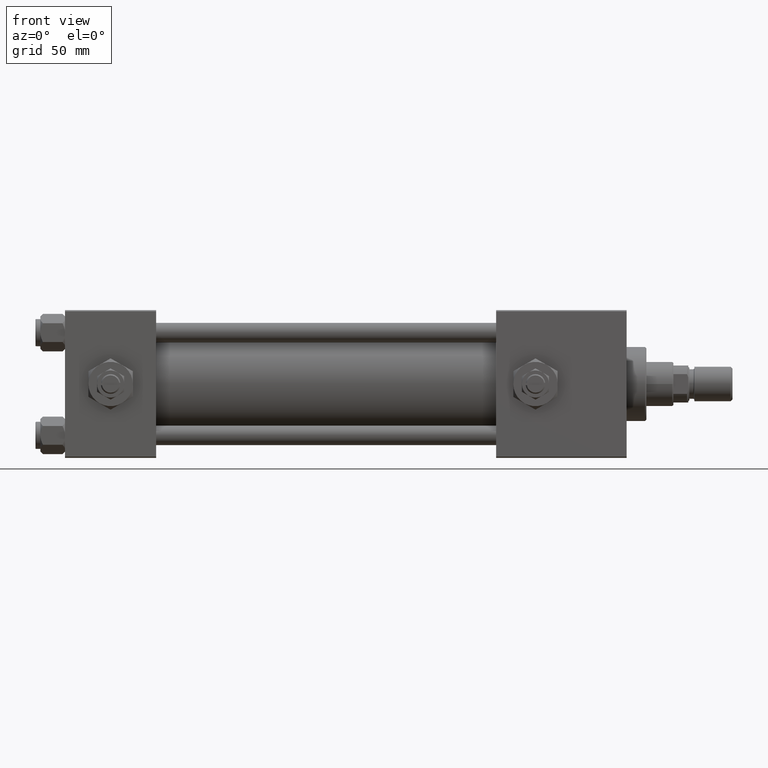
[diagram: clean part render]
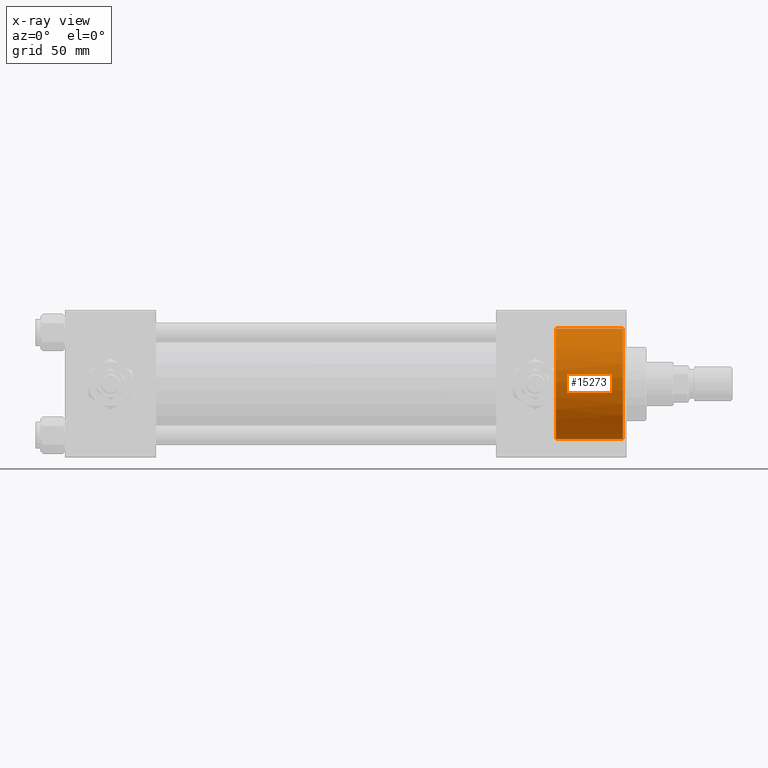
[diagram: x-ray — body ghosted, one internal face saturated and labeled with its STEP entity id]
A machine part, front view, then the same camera in x-ray: the body is ghosted and one INTERNAL B-rep face — a face not visible from any outside direction — is saturated and labeled: STEP entity #15273.
In plain terms, the highlighted cylindrical surface (partial cylindrical patch) has radius 22.5 mm, axis along (1, 0, 0).
Its self-contained STEP definition (entity closure, byte-faithful):
#1144 = VERTEX_POINT ( 'NONE', #46832 ) ;
#1400 = VERTEX_POINT ( 'NONE', #31064 ) ;
#1841 = DIRECTION ( 'NONE',  ( 1.000000000000000000, -0.000000000000000000, -0.000000000000000000 ) ) ;
#3686 = ORIENTED_EDGE ( 'NONE', *, *, #42971, .F. ) ;
#4067 = ORIENTED_EDGE ( 'NONE', *, *, #41295, .T. ) ;
#4531 = DIRECTION ( 'NONE',  ( 0.000000000000000000, 0.000000000000000000, -1.000000000000000000 ) ) ;
#8069 = CIRCLE ( 'NONE', #23447, 22.50000000000000355 ) ;
#8819 = ORIENTED_EDGE ( 'NONE', *, *, #12470, .F. ) ;
#9123 = CARTESIAN_POINT ( 'NONE',  ( 199.3000000000000114, -22.48891060056044822, -0.7063285354563751950 ) ) ;
#9383 = CARTESIAN_POINT ( 'NONE',  ( 199.3000000000000114, -22.48891060056044822, 0.7063285354563765273 ) ) ;
#9953 = CARTESIAN_POINT ( 'NONE',  ( 199.3000000000000114, 2.755455298081545172E-15, 22.50000000000000355 ) ) ;
#10966 = LINE ( 'NONE', #19240, #36518 ) ;
#12470 = EDGE_CURVE ( 'NONE', #35945, #1144, #21032, .T. ) ;
#12532 = DIRECTION ( 'NONE',  ( 0.000000000000000000, 0.000000000000000000, -1.000000000000000000 ) ) ;
#13658 = VECTOR ( 'NONE', #15666, 1000.000000000000000 ) ;
#14880 = CIRCLE ( 'NONE', #46457, 22.50000000000000355 ) ;
#15039 = ORIENTED_EDGE ( 'NONE', *, *, #43647, .T. ) ;
#15273 = ADVANCED_FACE ( 'NONE', ( #40689 ), #49517, .F. ) ;
#15666 = DIRECTION ( 'NONE',  ( 1.000000000000000000, -0.000000000000000000, -0.000000000000000000 ) ) ;
#17874 = ORIENTED_EDGE ( 'NONE', *, *, #30131, .T. ) ;
#18170 = EDGE_CURVE ( 'NONE', #1400, #36344, #10966, .T. ) ;
#18454 = AXIS2_PLACEMENT_3D ( 'NONE', #20037, #49180, #12532 ) ;
#19240 = CARTESIAN_POINT ( 'NONE',  ( 199.3000000000000114, 0.000000000000000000, -22.50000000000000355 ) ) ;
#20037 = CARTESIAN_POINT ( 'NONE',  ( 199.3000000000000114, 0.000000000000000000, 0.000000000000000000 ) ) ;
#20901 = DIRECTION ( 'NONE',  ( 0.000000000000000000, 0.000000000000000000, -1.000000000000000000 ) ) ;
#21032 = CIRCLE ( 'NONE', #18454, 22.50000000000000355 ) ;
#21165 = B_SPLINE_CURVE_WITH_KNOTS ( 'NONE', 3,
 ( #9123, #22461, #46009, #9383 ),
 .UNSPECIFIED., .F., .F.,
 ( 4, 4 ),
 ( 0.000000000000000000, 0.001412657070912751688 ),
 .UNSPECIFIED. ) ;
#21261 = VERTEX_POINT ( 'NONE', #26395 ) ;
#22461 = CARTESIAN_POINT ( 'NONE',  ( 199.3400722891566090, -22.50370011197376030, -0.2354428451521247134 ) ) ;
#23447 = AXIS2_PLACEMENT_3D ( 'NONE', #52554, #49079, #48272 ) ;
#24875 = CARTESIAN_POINT ( 'NONE',  ( 199.3000000000000114, 0.000000000000000000, 0.000000000000000000 ) ) ;
#24922 = CARTESIAN_POINT ( 'NONE',  ( 199.3000000000000114, 0.000000000000000000, 0.000000000000000000 ) ) ;
#25100 = CARTESIAN_POINT ( 'NONE',  ( 226.5000000000000000, 0.000000000000000000, -22.50000000000000355 ) ) ;
#26395 = CARTESIAN_POINT ( 'NONE',  ( 226.5000000000000000, 2.755455298081545172E-15, 22.50000000000000355 ) ) ;
#29683 = AXIS2_PLACEMENT_3D ( 'NONE', #24922, #32411, #20901 ) ;
#30131 = EDGE_CURVE ( 'NONE', #35945, #21261, #43755, .T. ) ;
#31064 = CARTESIAN_POINT ( 'NONE',  ( 199.3000000000000114, 0.000000000000000000, -22.50000000000000355 ) ) ;
#32411 = DIRECTION ( 'NONE',  ( 1.000000000000000000, -0.000000000000000000, -0.000000000000000000 ) ) ;
#32626 = DIRECTION ( 'NONE',  ( 1.000000000000000000, 0.000000000000000000, 0.000000000000000000 ) ) ;
#35945 = VERTEX_POINT ( 'NONE', #9953 ) ;
#35992 = CARTESIAN_POINT ( 'NONE',  ( 199.3000000000000114, 2.755455298081545172E-15, 22.50000000000000355 ) ) ;
#36344 = VERTEX_POINT ( 'NONE', #25100 ) ;
#36518 = VECTOR ( 'NONE', #1841, 1000.000000000000000 ) ;
#37200 = VERTEX_POINT ( 'NONE', #51724 ) ;
#39775 = EDGE_LOOP ( 'NONE', ( #8819, #17874, #15039, #46469, #3686, #4067 ) ) ;
#40689 = FACE_OUTER_BOUND ( 'NONE', #39775, .T. ) ;
#41295 = EDGE_CURVE ( 'NONE', #37200, #1144, #21165, .T. ) ;
#42971 = EDGE_CURVE ( 'NONE', #37200, #1400, #14880, .T. ) ;
#43647 = EDGE_CURVE ( 'NONE', #21261, #36344, #8069, .T. ) ;
#43755 = LINE ( 'NONE', #35992, #13658 ) ;
#46009 = CARTESIAN_POINT ( 'NONE',  ( 199.3400722891566090, -22.50370011197376030, 0.2354428451521261012 ) ) ;
#46457 = AXIS2_PLACEMENT_3D ( 'NONE', #24875, #32626, #4531 ) ;
#46469 = ORIENTED_EDGE ( 'NONE', *, *, #18170, .F. ) ;
#46832 = CARTESIAN_POINT ( 'NONE',  ( 199.3000000000000114, -22.48891060056044822, 0.7063285354563765273 ) ) ;
#48272 = DIRECTION ( 'NONE',  ( 0.000000000000000000, 0.000000000000000000, 1.000000000000000000 ) ) ;
#49079 = DIRECTION ( 'NONE',  ( 1.000000000000000000, 0.000000000000000000, 0.000000000000000000 ) ) ;
#49180 = DIRECTION ( 'NONE',  ( 1.000000000000000000, 0.000000000000000000, 0.000000000000000000 ) ) ;
#49517 = CYLINDRICAL_SURFACE ( 'NONE', #29683, 22.50000000000000355 ) ;
#51724 = CARTESIAN_POINT ( 'NONE',  ( 199.3000000000000114, -22.48891060056044822, -0.7063285354563751950 ) ) ;
#52554 = CARTESIAN_POINT ( 'NONE',  ( 226.5000000000000000, 0.000000000000000000, 0.000000000000000000 ) ) ;